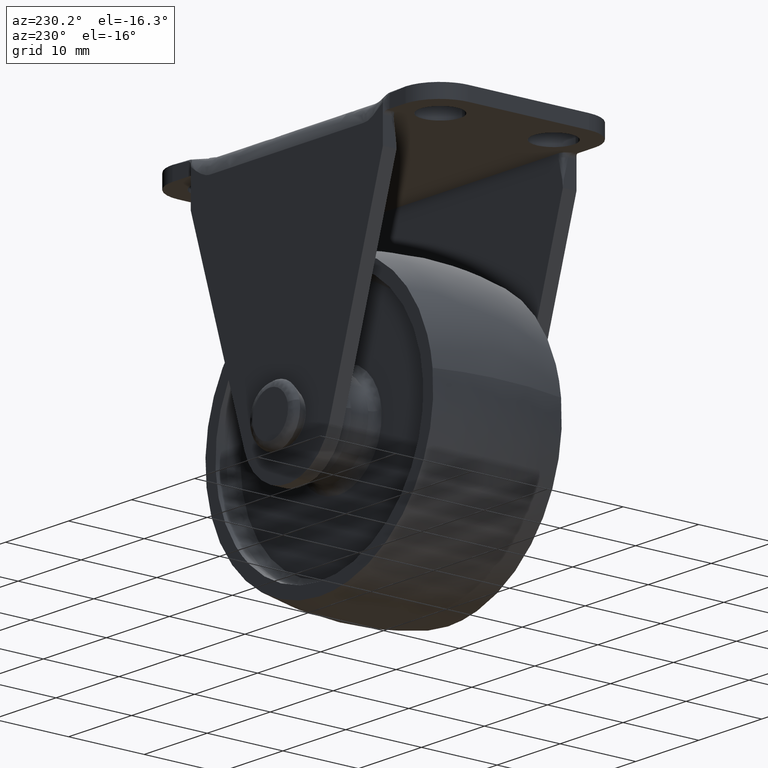
[diagram: clean part render]
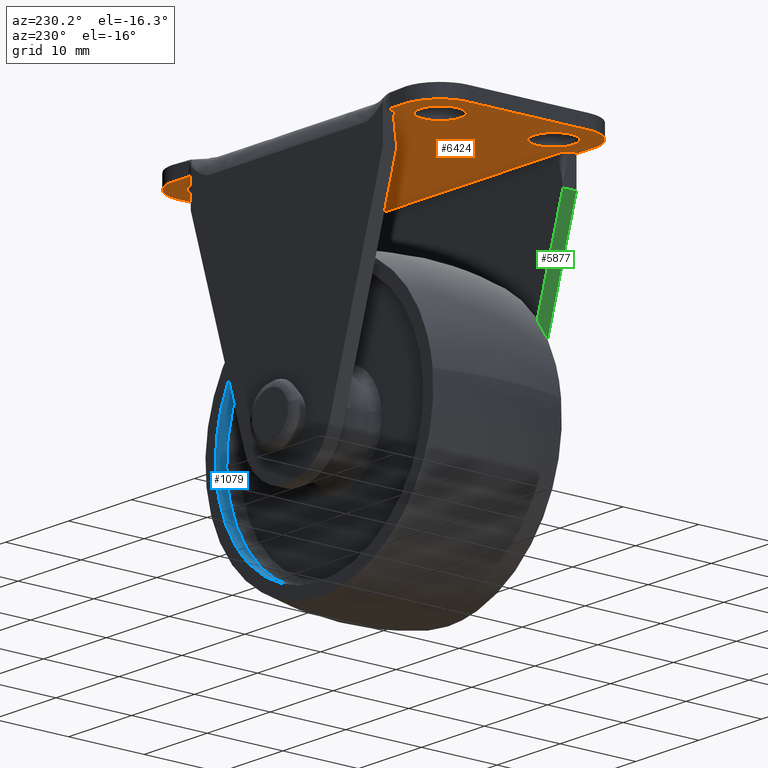
[diagram: same view with three faces highlighted in distinct colors, each labeled with its STEP entity id]
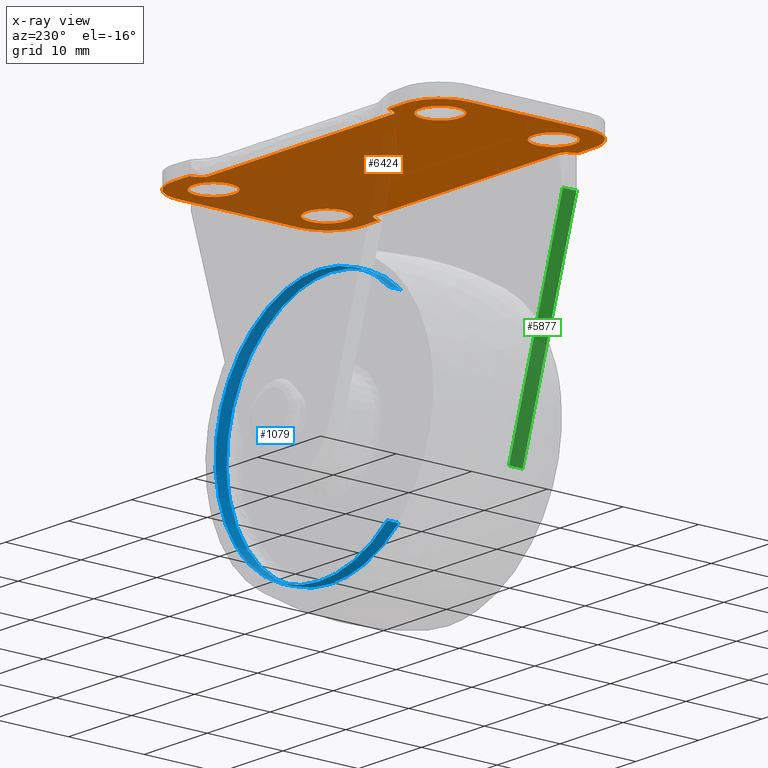
[diagram: x-ray of the same camera — body ghosted, the three highlighted faces saturated]
A machine part, auxiliary view with three faces highlighted in distinct colors.
The next image is the same camera in x-ray (body ghosted, the three faces saturated) — at least one of them is partly hidden behind the body in this view.
Their STEP definitions:

[orange] entity #6424 — the highlighted face is a freeform B-spline surface patch.
#2867=CARTESIAN_POINT('',(-17.838221370159228,-4.854942784186543,29.199999999999999));
#2868=VERTEX_POINT('',#2867);
#2874=CARTESIAN_POINT('',(-15.350000000000000,-7.500000000000000,29.199999999999999));
#2875=VERTEX_POINT('',#2874);
#2876=CARTESIAN_POINT('',(-15.350000000000000,-7.500000000000000,29.199999999999999));
#2877=CARTESIAN_POINT('',(-15.349999999999998,-5.007128922838514,29.200000000000006));
#2878=CARTESIAN_POINT('',(-17.838221370159228,-4.854942784186543,29.199999999999999));
#2886=(BOUNDED_CURVE()B_SPLINE_CURVE(2,(#2876,#2877,#2878),.UNSPECIFIED.,.F.,.U.)B_SPLINE_CURVE_WITH_KNOTS((3,3),(0.500000000000000,0.739332962232393),.UNSPECIFIED.)CURVE()GEOMETRIC_REPRESENTATION_ITEM()RATIONAL_B_SPLINE_CURVE((1.0,0.719603993294384,0.976072041652679))REPRESENTATION_ITEM(''));
#2887=EDGE_CURVE('',#2875,#2868,#2886,.T.);
#2889=CARTESIAN_POINT('',(-18.312790721873618,-10.131475244859770,29.199999999999999));
#2890=VERTEX_POINT('',#2889);
#2891=CARTESIAN_POINT('',(-18.312790721873622,-10.131475244859768,29.200000000000003));
#2892=CARTESIAN_POINT('',(-18.156943917111125,-10.149999999999999,29.200000000000003));
#2893=CARTESIAN_POINT('',(-18.0,-10.150000000000000,29.199999999999999));
#2894=CARTESIAN_POINT('',(-15.349999999999994,-10.149999999999999,29.199999999999999));
#2895=CARTESIAN_POINT('',(-15.350000000000000,-7.500000000000000,29.199999999999999));
#2903=(BOUNDED_CURVE()B_SPLINE_CURVE(2,(#2891,#2892,#2893,#2894,#2895),.UNSPECIFIED.,.F.,.U.)B_SPLINE_CURVE_WITH_KNOTS((3,2,3),(0.229562473511378,0.250000000000000,0.500000000000000),.UNSPECIFIED.)CURVE()GEOMETRIC_REPRESENTATION_ITEM()RATIONAL_B_SPLINE_CURVE((0.956026754179524,0.976055948328649,1.0,0.707106781186548,1.0))REPRESENTATION_ITEM(''));
#2904=EDGE_CURVE('',#2890,#2875,#2903,.T.);
#2948=CARTESIAN_POINT('',(-20.649999999999999,-7.500000000000000,29.199999999999999));
#2949=VERTEX_POINT('',#2948);
#2950=CARTESIAN_POINT('',(-20.649999999999999,-7.500000000000000,29.199999999999999));
#2951=CARTESIAN_POINT('',(-20.650000000000002,-9.853662493711292,29.200000000000006));
#2952=CARTESIAN_POINT('',(-18.312790721873618,-10.131475244859768,29.199999999999999));
#2960=(BOUNDED_CURVE()B_SPLINE_CURVE(2,(#2950,#2951,#2952),.UNSPECIFIED.,.F.,.U.)B_SPLINE_CURVE_WITH_KNOTS((3,3),(0.0,0.229562473511378),.UNSPECIFIED.)CURVE()GEOMETRIC_REPRESENTATION_ITEM()RATIONAL_B_SPLINE_CURVE((1.0,0.731050832857898,0.956026754179524))REPRESENTATION_ITEM(''));
#2961=EDGE_CURVE('',#2949,#2890,#2960,.T.);
#2963=CARTESIAN_POINT('',(-17.838221370159228,-4.854942784186543,29.199999999999996));
#2964=CARTESIAN_POINT('',(-17.919035177185137,-4.850000000000001,29.200000000000006));
#2965=CARTESIAN_POINT('',(-18.0,-4.850000000000001,29.199999999999999));
#2966=CARTESIAN_POINT('',(-20.650000000000002,-4.850000000000001,29.199999999999999));
#2967=CARTESIAN_POINT('',(-20.649999999999999,-7.500000000000000,29.199999999999999));
#2975=(BOUNDED_CURVE()B_SPLINE_CURVE(2,(#2963,#2964,#2965,#2966,#2967),.UNSPECIFIED.,.F.,.U.)B_SPLINE_CURVE_WITH_KNOTS((3,2,3),(0.739332962232392,0.750000000000000,1.0),.UNSPECIFIED.)CURVE()GEOMETRIC_REPRESENTATION_ITEM()RATIONAL_B_SPLINE_CURVE((0.976072041652679,0.987502787892163,1.0,0.707106781186548,1.0))REPRESENTATION_ITEM(''));
#2976=EDGE_CURVE('',#2868,#2949,#2975,.T.);
#3053=CARTESIAN_POINT('',(-17.838221370159228,10.145057215813461,29.199999999999999));
#3054=VERTEX_POINT('',#3053);
#3060=CARTESIAN_POINT('',(-15.350000000000000,7.500000000000000,29.199999999999999));
#3061=VERTEX_POINT('',#3060);
#3062=CARTESIAN_POINT('',(-15.350000000000000,7.500000000000000,29.199999999999999));
#3063=CARTESIAN_POINT('',(-15.349999999999998,9.992871077161485,29.200000000000006));
#3064=CARTESIAN_POINT('',(-17.838221370159228,10.145057215813457,29.199999999999999));
#3072=(BOUNDED_CURVE()B_SPLINE_CURVE(2,(#3062,#3063,#3064),.UNSPECIFIED.,.F.,.U.)B_SPLINE_CURVE_WITH_KNOTS((3,3),(0.500000000000000,0.739332962232393),.UNSPECIFIED.)CURVE()GEOMETRIC_REPRESENTATION_ITEM()RATIONAL_B_SPLINE_CURVE((1.0,0.719603993294384,0.976072041652679))REPRESENTATION_ITEM(''));
#3073=EDGE_CURVE('',#3061,#3054,#3072,.T.);
#3075=CARTESIAN_POINT('',(-18.312790721873629,4.868524755140232,29.199999999999999));
#3076=VERTEX_POINT('',#3075);
#3077=CARTESIAN_POINT('',(-18.312790721873625,4.868524755140232,29.200000000000006));
#3078=CARTESIAN_POINT('',(-18.156943917111125,4.850000000000000,29.200000000000003));
#3079=CARTESIAN_POINT('',(-18.0,4.850000000000001,29.199999999999999));
#3080=CARTESIAN_POINT('',(-15.349999999999994,4.850000000000001,29.199999999999999));
#3081=CARTESIAN_POINT('',(-15.350000000000000,7.500000000000000,29.199999999999999));
#3089=(BOUNDED_CURVE()B_SPLINE_CURVE(2,(#3077,#3078,#3079,#3080,#3081),.UNSPECIFIED.,.F.,.U.)B_SPLINE_CURVE_WITH_KNOTS((3,2,3),(0.229562473511378,0.250000000000000,0.500000000000000),.UNSPECIFIED.)CURVE()GEOMETRIC_REPRESENTATION_ITEM()RATIONAL_B_SPLINE_CURVE((0.956026754179524,0.976055948328649,1.0,0.707106781186548,1.0))REPRESENTATION_ITEM(''));
#3090=EDGE_CURVE('',#3076,#3061,#3089,.T.);
#3134=CARTESIAN_POINT('',(-20.649999999999999,7.500000000000000,29.199999999999999));
#3135=VERTEX_POINT('',#3134);
#3136=CARTESIAN_POINT('',(-20.649999999999999,7.500000000000000,29.199999999999999));
#3137=CARTESIAN_POINT('',(-20.650000000000002,5.146337506288709,29.200000000000006));
#3138=CARTESIAN_POINT('',(-18.312790721873629,4.868524755140232,29.199999999999999));
#3146=(BOUNDED_CURVE()B_SPLINE_CURVE(2,(#3136,#3137,#3138),.UNSPECIFIED.,.F.,.U.)B_SPLINE_CURVE_WITH_KNOTS((3,3),(0.0,0.229562473511378),.UNSPECIFIED.)CURVE()GEOMETRIC_REPRESENTATION_ITEM()RATIONAL_B_SPLINE_CURVE((1.0,0.731050832857898,0.956026754179524))REPRESENTATION_ITEM(''));
#3147=EDGE_CURVE('',#3135,#3076,#3146,.T.);
#3149=CARTESIAN_POINT('',(-17.838221370159228,10.145057215813457,29.199999999999996));
#3150=CARTESIAN_POINT('',(-17.919035177185137,10.149999999999997,29.200000000000006));
#3151=CARTESIAN_POINT('',(-18.0,10.150000000000000,29.199999999999999));
#3152=CARTESIAN_POINT('',(-20.650000000000002,10.149999999999999,29.199999999999999));
#3153=CARTESIAN_POINT('',(-20.649999999999999,7.500000000000000,29.199999999999999));
#3161=(BOUNDED_CURVE()B_SPLINE_CURVE(2,(#3149,#3150,#3151,#3152,#3153),.UNSPECIFIED.,.F.,.U.)B_SPLINE_CURVE_WITH_KNOTS((3,2,3),(0.739332962232392,0.750000000000000,1.0),.UNSPECIFIED.)CURVE()GEOMETRIC_REPRESENTATION_ITEM()RATIONAL_B_SPLINE_CURVE((0.976072041652679,0.987502787892163,1.0,0.707106781186548,1.0))REPRESENTATION_ITEM(''));
#3162=EDGE_CURVE('',#3054,#3135,#3161,.T.);
#3239=CARTESIAN_POINT('',(18.161778629840772,10.145057215813461,29.199999999999999));
#3240=VERTEX_POINT('',#3239);
#3246=CARTESIAN_POINT('',(20.649999999999999,7.500000000000000,29.199999999999999));
#3247=VERTEX_POINT('',#3246);
#3248=CARTESIAN_POINT('',(20.649999999999999,7.500000000000000,29.199999999999999));
#3249=CARTESIAN_POINT('',(20.650000000000002,9.992871077161485,29.200000000000006));
#3250=CARTESIAN_POINT('',(18.161778629840772,10.145057215813456,29.199999999999999));
#3258=(BOUNDED_CURVE()B_SPLINE_CURVE(2,(#3248,#3249,#3250),.UNSPECIFIED.,.F.,.U.)B_SPLINE_CURVE_WITH_KNOTS((3,3),(0.500000000000000,0.739332962232393),.UNSPECIFIED.)CURVE()GEOMETRIC_REPRESENTATION_ITEM()RATIONAL_B_SPLINE_CURVE((1.0,0.719603993294384,0.976072041652679))REPRESENTATION_ITEM(''));
#3259=EDGE_CURVE('',#3247,#3240,#3258,.T.);
#3261=CARTESIAN_POINT('',(17.687209278126382,4.868524755140232,29.199999999999999));
#3262=VERTEX_POINT('',#3261);
#3263=CARTESIAN_POINT('',(17.687209278126378,4.868524755140232,29.199999999999996));
#3264=CARTESIAN_POINT('',(17.843056082888875,4.850000000000001,29.199999999999999));
#3265=CARTESIAN_POINT('',(18.0,4.850000000000001,29.199999999999999));
#3266=CARTESIAN_POINT('',(20.650000000000002,4.850000000000001,29.199999999999999));
#3267=CARTESIAN_POINT('',(20.649999999999999,7.500000000000000,29.199999999999999));
#3275=(BOUNDED_CURVE()B_SPLINE_CURVE(2,(#3263,#3264,#3265,#3266,#3267),.UNSPECIFIED.,.F.,.U.)B_SPLINE_CURVE_WITH_KNOTS((3,2,3),(0.229562473511378,0.250000000000000,0.500000000000000),.UNSPECIFIED.)CURVE()GEOMETRIC_REPRESENTATION_ITEM()RATIONAL_B_SPLINE_CURVE((0.956026754179524,0.976055948328650,1.0,0.707106781186548,1.0))REPRESENTATION_ITEM(''));
#3276=EDGE_CURVE('',#3262,#3247,#3275,.T.);
#3320=CARTESIAN_POINT('',(15.350000000000000,7.500000000000000,29.199999999999999));
#3321=VERTEX_POINT('',#3320);
#3322=CARTESIAN_POINT('',(15.350000000000000,7.500000000000000,29.199999999999999));
#3323=CARTESIAN_POINT('',(15.349999999999996,5.146337506288706,29.199999999999999));
#3324=CARTESIAN_POINT('',(17.687209278126378,4.868524755140232,29.199999999999996));
#3332=(BOUNDED_CURVE()B_SPLINE_CURVE(2,(#3322,#3323,#3324),.UNSPECIFIED.,.F.,.U.)B_SPLINE_CURVE_WITH_KNOTS((3,3),(0.0,0.229562473511378),.UNSPECIFIED.)CURVE()GEOMETRIC_REPRESENTATION_ITEM()RATIONAL_B_SPLINE_CURVE((1.0,0.731050832857898,0.956026754179524))REPRESENTATION_ITEM(''));
#3333=EDGE_CURVE('',#3321,#3262,#3332,.T.);
#3335=CARTESIAN_POINT('',(18.161778629840772,10.145057215813456,29.199999999999999));
#3336=CARTESIAN_POINT('',(18.080964822814863,10.150000000000000,29.199999999999999));
#3337=CARTESIAN_POINT('',(18.0,10.150000000000000,29.199999999999999));
#3338=CARTESIAN_POINT('',(15.349999999999994,10.149999999999999,29.199999999999999));
#3339=CARTESIAN_POINT('',(15.350000000000000,7.500000000000000,29.199999999999999));
#3347=(BOUNDED_CURVE()B_SPLINE_CURVE(2,(#3335,#3336,#3337,#3338,#3339),.UNSPECIFIED.,.F.,.U.)B_SPLINE_CURVE_WITH_KNOTS((3,2,3),(0.739332962232392,0.750000000000000,1.0),.UNSPECIFIED.)CURVE()GEOMETRIC_REPRESENTATION_ITEM()RATIONAL_B_SPLINE_CURVE((0.976072041652678,0.987502787892163,1.0,0.707106781186548,1.0))REPRESENTATION_ITEM(''));
#3348=EDGE_CURVE('',#3240,#3321,#3347,.T.);
#3425=CARTESIAN_POINT('',(18.161778629840772,-4.854942784186543,29.199999999999999));
#3426=VERTEX_POINT('',#3425);
#3432=CARTESIAN_POINT('',(20.649999999999999,-7.500000000000000,29.199999999999999));
#3433=VERTEX_POINT('',#3432);
#3434=CARTESIAN_POINT('',(20.649999999999999,-7.500000000000000,29.199999999999999));
#3435=CARTESIAN_POINT('',(20.650000000000002,-5.007128922838514,29.200000000000006));
#3436=CARTESIAN_POINT('',(18.161778629840772,-4.854942784186543,29.199999999999999));
#3444=(BOUNDED_CURVE()B_SPLINE_CURVE(2,(#3434,#3435,#3436),.UNSPECIFIED.,.F.,.U.)B_SPLINE_CURVE_WITH_KNOTS((3,3),(0.500000000000000,0.739332962232393),.UNSPECIFIED.)CURVE()GEOMETRIC_REPRESENTATION_ITEM()RATIONAL_B_SPLINE_CURVE((1.0,0.719603993294384,0.976072041652679))REPRESENTATION_ITEM(''));
#3445=EDGE_CURVE('',#3433,#3426,#3444,.T.);
#3447=CARTESIAN_POINT('',(17.687209278126382,-10.131475244859770,29.199999999999999));
#3448=VERTEX_POINT('',#3447);
#3449=CARTESIAN_POINT('',(17.687209278126375,-10.131475244859768,29.199999999999999));
#3450=CARTESIAN_POINT('',(17.843056082888868,-10.150000000000000,29.199999999999999));
#3451=CARTESIAN_POINT('',(18.0,-10.150000000000000,29.199999999999999));
#3452=CARTESIAN_POINT('',(20.650000000000002,-10.149999999999999,29.199999999999999));
#3453=CARTESIAN_POINT('',(20.649999999999999,-7.500000000000000,29.199999999999999));
#3461=(BOUNDED_CURVE()B_SPLINE_CURVE(2,(#3449,#3450,#3451,#3452,#3453),.UNSPECIFIED.,.F.,.U.)B_SPLINE_CURVE_WITH_KNOTS((3,2,3),(0.229562473511378,0.250000000000000,0.500000000000000),.UNSPECIFIED.)CURVE()GEOMETRIC_REPRESENTATION_ITEM()RATIONAL_B_SPLINE_CURVE((0.956026754179524,0.976055948328649,1.0,0.707106781186548,1.0))REPRESENTATION_ITEM(''));
#3462=EDGE_CURVE('',#3448,#3433,#3461,.T.);
#3506=CARTESIAN_POINT('',(15.350000000000000,-7.500000000000000,29.199999999999999));
#3507=VERTEX_POINT('',#3506);
#3508=CARTESIAN_POINT('',(15.350000000000000,-7.500000000000000,29.199999999999999));
#3509=CARTESIAN_POINT('',(15.349999999999993,-9.853662493711294,29.200000000000010));
#3510=CARTESIAN_POINT('',(17.687209278126371,-10.131475244859768,29.200000000000003));
#3518=(BOUNDED_CURVE()B_SPLINE_CURVE(2,(#3508,#3509,#3510),.UNSPECIFIED.,.F.,.U.)B_SPLINE_CURVE_WITH_KNOTS((3,3),(0.0,0.229562473511378),.UNSPECIFIED.)CURVE()GEOMETRIC_REPRESENTATION_ITEM()RATIONAL_B_SPLINE_CURVE((1.0,0.731050832857898,0.956026754179524))REPRESENTATION_ITEM(''));
#3519=EDGE_CURVE('',#3507,#3448,#3518,.T.);
#3521=CARTESIAN_POINT('',(18.161778629840768,-4.854942784186544,29.199999999999999));
#3522=CARTESIAN_POINT('',(18.080964822814867,-4.850000000000001,29.200000000000003));
#3523=CARTESIAN_POINT('',(18.0,-4.850000000000001,29.199999999999999));
#3524=CARTESIAN_POINT('',(15.349999999999994,-4.850000000000001,29.199999999999999));
#3525=CARTESIAN_POINT('',(15.350000000000000,-7.500000000000000,29.199999999999999));
#3533=(BOUNDED_CURVE()B_SPLINE_CURVE(2,(#3521,#3522,#3523,#3524,#3525),.UNSPECIFIED.,.F.,.U.)B_SPLINE_CURVE_WITH_KNOTS((3,2,3),(0.739332962232392,0.750000000000000,1.0),.UNSPECIFIED.)CURVE()GEOMETRIC_REPRESENTATION_ITEM()RATIONAL_B_SPLINE_CURVE((0.976072041652678,0.987502787892163,1.0,0.707106781186548,1.0))REPRESENTATION_ITEM(''));
#3534=EDGE_CURVE('',#3426,#3507,#3533,.T.);
#3694=CARTESIAN_POINT('',(-14.606813741928899,-11.0,29.199999999999999));
#3695=VERTEX_POINT('',#3694);
#3696=CARTESIAN_POINT('',(-15.750000000000000,-12.199935907571801,29.199999999999999));
#3697=VERTEX_POINT('',#3696);
#3698=CARTESIAN_POINT('',(-14.606813741928899,-11.0,29.199999999999999));
#3699=CARTESIAN_POINT('',(-15.031690435100000,-11.001539630774539,29.199999999999999));
#3700=CARTESIAN_POINT('',(-15.345386402327311,-11.417848720005090,29.199999999999999));
#3701=CARTESIAN_POINT('',(-15.460756944373070,-11.570958132624019,29.199999999999999));
#3702=CARTESIAN_POINT('',(-15.569832608546109,-11.797625937855070,29.199999999999999));
#3703=CARTESIAN_POINT('',(-15.613450549437310,-11.888267448089881,29.199999999999999));
#3704=CARTESIAN_POINT('',(-15.660501868013871,-11.999528732569070,29.199999999999999));
#3705=CARTESIAN_POINT('',(-15.743117375194849,-12.194887921746520,29.199999999999999));
#3706=CARTESIAN_POINT('',(-15.750000000000000,-12.199935907571801,29.199999999999999));
#3707=B_SPLINE_CURVE_WITH_KNOTS('',2,(#3698,#3699,#3700,#3701,#3702,#3703,#3704,#3705,#3706),.UNSPECIFIED.,.F.,.U.,(3,2,2,2,3),(0.0,0.500000000000000,0.750000000000000,0.875000000000000,0.997108552630249),.UNSPECIFIED.);
#3708=EDGE_CURVE('',#3695,#3697,#3707,.T.);
#3873=CARTESIAN_POINT('',(-15.750213774191749,12.199657680195021,29.199999999999999));
#3874=VERTEX_POINT('',#3873);
#3875=CARTESIAN_POINT('',(-14.606813741919940,11.0,29.199999999999999));
#3876=VERTEX_POINT('',#3875);
#3877=CARTESIAN_POINT('',(-15.750213774191749,12.199657680195021,29.199999999999999));
#3878=CARTESIAN_POINT('',(-15.743333433700659,12.194622844377649,29.199999999999999));
#3879=CARTESIAN_POINT('',(-15.660699706041150,11.999311489361860,29.199999999999999));
#3880=CARTESIAN_POINT('',(-15.613699381370290,11.888222502362909,29.199999999999999));
#3881=CARTESIAN_POINT('',(-15.570129329786891,11.797701493120590,29.199999999999999));
#3882=CARTESIAN_POINT('',(-15.461199689273970,11.571389596822630,29.199999999999999));
#3883=CARTESIAN_POINT('',(-15.346032945223280,11.418431255205940,29.199999999999999));
#3884=CARTESIAN_POINT('',(-15.032106710508630,11.001491133752220,29.199999999999999));
#3885=CARTESIAN_POINT('',(-14.606813741919940,11.0,29.199999999999999));
#3886=B_SPLINE_CURVE_WITH_KNOTS('',2,(#3877,#3878,#3879,#3880,#3881,#3882,#3883,#3884,#3885),.UNSPECIFIED.,.F.,.U.,(3,2,2,2,3),(0.002884036529855,0.125000000000000,0.250000000000000,0.500000000000000,1.0),.UNSPECIFIED.);
#3887=EDGE_CURVE('',#3874,#3876,#3886,.T.);
#4051=CARTESIAN_POINT('',(15.750213774191099,-12.199657680195241,29.199999999999999));
#4052=VERTEX_POINT('',#4051);
#4053=CARTESIAN_POINT('',(14.606813741928740,-11.0,29.199999999999999));
#4054=VERTEX_POINT('',#4053);
#4055=CARTESIAN_POINT('',(15.750213774191099,-12.199657680195241,29.199999999999999));
#4056=CARTESIAN_POINT('',(15.743328754144869,-12.194619976668500,29.199999999999999));
#4057=CARTESIAN_POINT('',(15.660741330573160,-11.999409009696659,29.199999999999999));
#4058=CARTESIAN_POINT('',(15.613761607235110,-11.888363564466969,29.199999999999999));
#4059=CARTESIAN_POINT('',(15.570212817466340,-11.797874327388220,29.199999999999999));
#4060=CARTESIAN_POINT('',(15.461356553797829,-11.571683879779590,29.199999999999999));
#4061=CARTESIAN_POINT('',(15.346287303401960,-11.418768949710969,29.199999999999999));
#4062=CARTESIAN_POINT('',(15.032284155447661,-11.001491794905620,29.199999999999999));
#4063=CARTESIAN_POINT('',(14.606813741928740,-11.0,29.199999999999999));
#4064=B_SPLINE_CURVE_WITH_KNOTS('',2,(#4055,#4056,#4057,#4058,#4059,#4060,#4061,#4062,#4063),.UNSPECIFIED.,.F.,.U.,(3,2,2,2,3),(0.002887102411451,0.125000000000000,0.250000000000000,0.500000000000000,1.0),.UNSPECIFIED.);
#4065=EDGE_CURVE('',#4052,#4054,#4064,.T.);
#4229=CARTESIAN_POINT('',(14.606813741928740,11.0,29.199999999999999));
#4230=VERTEX_POINT('',#4229);
#4231=CARTESIAN_POINT('',(15.750000000000000,12.199935907571700,29.199999999999999));
#4232=VERTEX_POINT('',#4231);
#4233=CARTESIAN_POINT('',(14.606813741928740,11.0,29.199999999999999));
#4234=CARTESIAN_POINT('',(15.031601415359381,11.001539299118731,29.199999999999999));
#4235=CARTESIAN_POINT('',(15.345258806070071,11.417679461192581,29.199999999999999));
#4236=CARTESIAN_POINT('',(15.460684208713010,11.570818354730079,29.199999999999999));
#4237=CARTESIAN_POINT('',(15.569802571350129,11.797563664741981,29.199999999999999));
#4238=CARTESIAN_POINT('',(15.613430573735091,11.888221595148121,29.199999999999999));
#4239=CARTESIAN_POINT('',(15.660492325643659,11.999506366866269,29.199999999999999));
#4240=CARTESIAN_POINT('',(15.743118451500941,12.194888586632430,29.199999999999999));
#4241=CARTESIAN_POINT('',(15.750000000000000,12.199935907571700,29.199999999999999));
#4242=B_SPLINE_CURVE_WITH_KNOTS('',2,(#4233,#4234,#4235,#4236,#4237,#4238,#4239,#4240,#4241),.UNSPECIFIED.,.F.,.U.,(3,2,2,2,3),(0.0,0.500000000000000,0.750000000000000,0.875000000000000,0.997109260626446),.UNSPECIFIED.);
#4243=EDGE_CURVE('',#4230,#4232,#4242,.T.);
#5101=CARTESIAN_POINT('',(15.964142842854200,12.500000000000000,29.199999999999999));
#5102=VERTEX_POINT('',#5101);
#5108=CARTESIAN_POINT('',(15.750000000000000,12.523197643914440,29.199999999999999));
#5109=VERTEX_POINT('',#5108);
#5110=CARTESIAN_POINT('',(15.750000000000000,12.523197643914431,29.199999999999999));
#5111=CARTESIAN_POINT('',(15.855814945431899,12.499999999999998,29.199999999999999));
#5112=CARTESIAN_POINT('',(15.964142842854200,12.500000000000000,29.199999999999999));
#5120=(BOUNDED_CURVE()B_SPLINE_CURVE(2,(#5110,#5111,#5112),.UNSPECIFIED.,.F.,.U.)CURVE()GEOMETRIC_REPRESENTATION_ITEM()QUASI_UNIFORM_CURVE()RATIONAL_B_SPLINE_CURVE((1.0,0.994183674198478,1.0))REPRESENTATION_ITEM(''));
#5121=EDGE_CURVE('',#5109,#5102,#5120,.T.);
#5163=CARTESIAN_POINT('',(-15.964142842854351,12.500000000000000,29.199999999999999));
#5164=VERTEX_POINT('',#5163);
#5178=CARTESIAN_POINT('',(-15.750000000000000,12.523197643914440,29.199999999999999));
#5179=VERTEX_POINT('',#5178);
#5203=CARTESIAN_POINT('',(-15.964142842854351,12.500000000000000,29.199999999999999));
#5204=CARTESIAN_POINT('',(-15.855814945431971,12.500000000000005,29.199999999999999));
#5205=CARTESIAN_POINT('',(-15.750000000000000,12.523197643914459,29.199999999999999));
#5213=(BOUNDED_CURVE()B_SPLINE_CURVE(2,(#5203,#5204,#5205),.UNSPECIFIED.,.F.,.U.)CURVE()GEOMETRIC_REPRESENTATION_ITEM()QUASI_UNIFORM_CURVE()RATIONAL_B_SPLINE_CURVE((1.0,0.994183674198470,1.0))REPRESENTATION_ITEM(''));
#5214=EDGE_CURVE('',#5164,#5179,#5213,.T.);
#5241=CARTESIAN_POINT('',(-15.964142842854450,-12.500000000000000,29.199999999999999));
#5242=VERTEX_POINT('',#5241);
#5248=CARTESIAN_POINT('',(-15.750000000000000,-12.523197643914459,29.199999999999999));
#5249=VERTEX_POINT('',#5248);
#5250=CARTESIAN_POINT('',(-15.750000000000000,-12.523197643914481,29.199999999999999));
#5251=CARTESIAN_POINT('',(-15.855814945432019,-12.500000000000004,29.199999999999999));
#5252=CARTESIAN_POINT('',(-15.964142842854450,-12.500000000000000,29.199999999999999));
#5260=(BOUNDED_CURVE()B_SPLINE_CURVE(2,(#5250,#5251,#5252),.UNSPECIFIED.,.F.,.U.)CURVE()GEOMETRIC_REPRESENTATION_ITEM()QUASI_UNIFORM_CURVE()RATIONAL_B_SPLINE_CURVE((1.0,0.994183674198464,1.0))REPRESENTATION_ITEM(''));
#5261=EDGE_CURVE('',#5249,#5242,#5260,.T.);
#5303=CARTESIAN_POINT('',(15.964142842854301,-12.500000000000000,29.199999999999999));
#5304=VERTEX_POINT('',#5303);
#5318=CARTESIAN_POINT('',(15.750000000000000,-12.523197643914459,29.199999999999999));
#5319=VERTEX_POINT('',#5318);
#5343=CARTESIAN_POINT('',(15.964142842854301,-12.500000000000000,29.199999999999999));
#5344=CARTESIAN_POINT('',(15.855814945431947,-12.499999999999998,29.200000000000003));
#5345=CARTESIAN_POINT('',(15.750000000000000,-12.523197643914450,29.199999999999999));
#5353=(BOUNDED_CURVE()B_SPLINE_CURVE(2,(#5343,#5344,#5345),.UNSPECIFIED.,.F.,.U.)CURVE()GEOMETRIC_REPRESENTATION_ITEM()QUASI_UNIFORM_CURVE()RATIONAL_B_SPLINE_CURVE((1.0,0.994183674198472,1.0))REPRESENTATION_ITEM(''));
#5354=EDGE_CURVE('',#5304,#5319,#5353,.T.);
#5379=CARTESIAN_POINT('',(-15.750000000000000,12.523197643914440,29.199999999999999));
#5380=CARTESIAN_POINT('',(-15.750213774191749,12.199657680195021,29.199999999999999));
#5381=QUASI_UNIFORM_CURVE('',1,(#5379,#5380),.UNSPECIFIED.,.F.,.U.);
#5382=EDGE_CURVE('',#5179,#3874,#5381,.T.);
#5402=CARTESIAN_POINT('',(-15.750000000000000,-12.199935907571801,29.199999999999999));
#5403=CARTESIAN_POINT('',(-15.750000000000000,-12.523197643914459,29.199999999999999));
#5404=QUASI_UNIFORM_CURVE('',1,(#5402,#5403),.UNSPECIFIED.,.F.,.U.);
#5405=EDGE_CURVE('',#3697,#5249,#5404,.T.);
#5437=CARTESIAN_POINT('',(15.750000000000000,-12.523197643914459,29.199999999999999));
#5438=CARTESIAN_POINT('',(15.750213774191099,-12.199657680195241,29.199999999999999));
#5439=QUASI_UNIFORM_CURVE('',1,(#5437,#5438),.UNSPECIFIED.,.F.,.U.);
#5440=EDGE_CURVE('',#5319,#4052,#5439,.T.);
#5460=CARTESIAN_POINT('',(15.750000000000000,12.199935907571700,29.199999999999999));
#5461=CARTESIAN_POINT('',(15.750000000000000,12.523197643914440,29.199999999999999));
#5462=QUASI_UNIFORM_CURVE('',1,(#5460,#5461),.UNSPECIFIED.,.F.,.U.);
#5463=EDGE_CURVE('',#4232,#5109,#5462,.T.);
#6090=CARTESIAN_POINT('',(-18.500000000000000,12.500000000000000,29.199999999999999));
#6091=VERTEX_POINT('',#6090);
#6099=CARTESIAN_POINT('',(-15.964142842854351,12.500000000000000,29.199999999999999));
#6100=CARTESIAN_POINT('',(-18.500000000000000,12.500000000000000,29.199999999999999));
#6101=QUASI_UNIFORM_CURVE('',1,(#6099,#6100),.UNSPECIFIED.,.F.,.U.);
#6102=EDGE_CURVE('',#5164,#6091,#6101,.T.);
#6114=CARTESIAN_POINT('',(18.500000000000000,12.500000000000000,29.199999999999999));
#6115=VERTEX_POINT('',#6114);
#6121=CARTESIAN_POINT('',(18.500000000000000,12.500000000000000,29.199999999999999));
#6122=CARTESIAN_POINT('',(15.964142842854200,12.500000000000000,29.199999999999999));
#6123=QUASI_UNIFORM_CURVE('',1,(#6121,#6122),.UNSPECIFIED.,.F.,.U.);
#6124=EDGE_CURVE('',#6115,#5102,#6123,.T.);
#6144=CARTESIAN_POINT('',(23.0,8.0,29.199999999999999));
#6145=VERTEX_POINT('',#6144);
#6151=CARTESIAN_POINT('',(23.0,8.0,29.199999999999999));
#6152=CARTESIAN_POINT('',(22.999999999999996,12.499999999999998,29.199999999999989));
#6153=CARTESIAN_POINT('',(18.500000000000000,12.500000000000000,29.199999999999999));
#6161=(BOUNDED_CURVE()B_SPLINE_CURVE(2,(#6151,#6152,#6153),.UNSPECIFIED.,.F.,.U.)CURVE()GEOMETRIC_REPRESENTATION_ITEM()QUASI_UNIFORM_CURVE()RATIONAL_B_SPLINE_CURVE((1.0,0.707106781186547,1.0))REPRESENTATION_ITEM(''));
#6162=EDGE_CURVE('',#6145,#6115,#6161,.T.);
#6174=CARTESIAN_POINT('',(23.0,-8.0,29.199999999999999));
#6175=VERTEX_POINT('',#6174);
#6181=CARTESIAN_POINT('',(23.0,-8.0,29.199999999999999));
#6182=CARTESIAN_POINT('',(23.0,8.0,29.199999999999999));
#6183=QUASI_UNIFORM_CURVE('',1,(#6181,#6182),.UNSPECIFIED.,.F.,.U.);
#6184=EDGE_CURVE('',#6175,#6145,#6183,.T.);
#6205=CARTESIAN_POINT('',(18.500000000000000,-12.500000000000000,29.199999999999999));
#6206=VERTEX_POINT('',#6205);
#6212=CARTESIAN_POINT('',(18.500000000000000,-12.500000000000000,29.199999999999999));
#6213=CARTESIAN_POINT('',(22.999999999999996,-12.499999999999998,29.199999999999989));
#6214=CARTESIAN_POINT('',(23.0,-8.0,29.199999999999999));
#6222=(BOUNDED_CURVE()B_SPLINE_CURVE(2,(#6212,#6213,#6214),.UNSPECIFIED.,.F.,.U.)CURVE()GEOMETRIC_REPRESENTATION_ITEM()QUASI_UNIFORM_CURVE()RATIONAL_B_SPLINE_CURVE((1.0,0.707106781186547,1.0))REPRESENTATION_ITEM(''));
#6223=EDGE_CURVE('',#6206,#6175,#6222,.T.);
#6237=CARTESIAN_POINT('',(15.964142842854301,-12.500000000000000,29.199999999999999));
#6238=CARTESIAN_POINT('',(18.500000000000000,-12.500000000000000,29.199999999999999));
#6239=QUASI_UNIFORM_CURVE('',1,(#6237,#6238),.UNSPECIFIED.,.F.,.U.);
#6240=EDGE_CURVE('',#5304,#6206,#6239,.T.);
#6252=CARTESIAN_POINT('',(-18.500000000000000,-12.500000000000000,29.199999999999999));
#6253=VERTEX_POINT('',#6252);
#6259=CARTESIAN_POINT('',(-18.500000000000000,-12.500000000000000,29.199999999999999));
#6260=CARTESIAN_POINT('',(-15.964142842854450,-12.500000000000000,29.199999999999999));
#6261=QUASI_UNIFORM_CURVE('',1,(#6259,#6260),.UNSPECIFIED.,.F.,.U.);
#6262=EDGE_CURVE('',#6253,#5242,#6261,.T.);
#6282=CARTESIAN_POINT('',(-23.0,-8.0,29.199999999999999));
#6283=VERTEX_POINT('',#6282);
#6289=CARTESIAN_POINT('',(-23.0,-8.0,29.199999999999999));
#6290=CARTESIAN_POINT('',(-22.999999999999996,-12.499999999999998,29.199999999999989));
#6291=CARTESIAN_POINT('',(-18.500000000000000,-12.500000000000000,29.199999999999999));
#6299=(BOUNDED_CURVE()B_SPLINE_CURVE(2,(#6289,#6290,#6291),.UNSPECIFIED.,.F.,.U.)CURVE()GEOMETRIC_REPRESENTATION_ITEM()QUASI_UNIFORM_CURVE()RATIONAL_B_SPLINE_CURVE((1.0,0.707106781186547,1.0))REPRESENTATION_ITEM(''));
#6300=EDGE_CURVE('',#6283,#6253,#6299,.T.);
#6312=CARTESIAN_POINT('',(-23.0,8.0,29.199999999999999));
#6313=VERTEX_POINT('',#6312);
#6319=CARTESIAN_POINT('',(-23.0,8.0,29.199999999999999));
#6320=CARTESIAN_POINT('',(-23.0,-8.0,29.199999999999999));
#6321=QUASI_UNIFORM_CURVE('',1,(#6319,#6320),.UNSPECIFIED.,.F.,.U.);
#6322=EDGE_CURVE('',#6313,#6283,#6321,.T.);
#6344=CARTESIAN_POINT('',(-18.500000000000000,12.500000000000000,29.199999999999999));
#6345=CARTESIAN_POINT('',(-22.999999999999996,12.499999999999998,29.199999999999989));
#6346=CARTESIAN_POINT('',(-23.0,8.0,29.199999999999999));
#6354=(BOUNDED_CURVE()B_SPLINE_CURVE(2,(#6344,#6345,#6346),.UNSPECIFIED.,.F.,.U.)CURVE()GEOMETRIC_REPRESENTATION_ITEM()QUASI_UNIFORM_CURVE()RATIONAL_B_SPLINE_CURVE((1.0,0.707106781186547,1.0))REPRESENTATION_ITEM(''));
#6355=EDGE_CURVE('',#6091,#6313,#6354,.T.);
#6361=CARTESIAN_POINT('',(-25.297699910843079,13.774264480278131,29.199999999999999));
#6362=CARTESIAN_POINT('',(25.297701144659229,13.774264480278131,29.199999999999999));
#6363=CARTESIAN_POINT('',(-25.297699910843079,-13.774263808481480,29.199999999999999));
#6364=CARTESIAN_POINT('',(25.297701144659229,-13.774263808481480,29.199999999999999));
#6365=B_SPLINE_SURFACE_WITH_KNOTS('',1,1,((#6361,#6363),(#6362,#6364)),.UNSPECIFIED.,.F.,.F.,.U.,(2,2),(2,2),(0.0,50.595401055502307),(0.0,27.548528288759599),.UNSPECIFIED.);
#6366=CARTESIAN_POINT('',(14.606813741928740,11.0,29.199999999999999));
#6367=CARTESIAN_POINT('',(-14.606813741919940,11.0,29.199999999999999));
#6368=QUASI_UNIFORM_CURVE('',1,(#6366,#6367),.UNSPECIFIED.,.F.,.U.);
#6369=EDGE_CURVE('',#4230,#3876,#6368,.T.);
#6370=ORIENTED_EDGE('',*,*,#6369,.F.);
#6371=ORIENTED_EDGE('',*,*,#4243,.T.);
#6372=ORIENTED_EDGE('',*,*,#5463,.T.);
#6373=ORIENTED_EDGE('',*,*,#5121,.T.);
#6374=ORIENTED_EDGE('',*,*,#6124,.F.);
#6375=ORIENTED_EDGE('',*,*,#6162,.F.);
#6376=ORIENTED_EDGE('',*,*,#6184,.F.);
#6377=ORIENTED_EDGE('',*,*,#6223,.F.);
#6378=ORIENTED_EDGE('',*,*,#6240,.F.);
#6379=ORIENTED_EDGE('',*,*,#5354,.T.);
#6380=ORIENTED_EDGE('',*,*,#5440,.T.);
#6381=ORIENTED_EDGE('',*,*,#4065,.T.);
#6382=CARTESIAN_POINT('',(14.606813741928740,-11.0,29.199999999999999));
#6383=CARTESIAN_POINT('',(-14.606813741928899,-11.0,29.199999999999999));
#6384=QUASI_UNIFORM_CURVE('',1,(#6382,#6383),.UNSPECIFIED.,.F.,.U.);
#6385=EDGE_CURVE('',#4054,#3695,#6384,.T.);
#6386=ORIENTED_EDGE('',*,*,#6385,.T.);
#6387=ORIENTED_EDGE('',*,*,#3708,.T.);
#6388=ORIENTED_EDGE('',*,*,#5405,.T.);
#6389=ORIENTED_EDGE('',*,*,#5261,.T.);
#6390=ORIENTED_EDGE('',*,*,#6262,.F.);
#6391=ORIENTED_EDGE('',*,*,#6300,.F.);
#6392=ORIENTED_EDGE('',*,*,#6322,.F.);
#6393=ORIENTED_EDGE('',*,*,#6355,.F.);
#6394=ORIENTED_EDGE('',*,*,#6102,.F.);
#6395=ORIENTED_EDGE('',*,*,#5214,.T.);
#6396=ORIENTED_EDGE('',*,*,#5382,.T.);
#6397=ORIENTED_EDGE('',*,*,#3887,.T.);
#6398=EDGE_LOOP('',(#6370,#6371,#6372,#6373,#6374,#6375,#6376,#6377,#6378,#6379,#6380,#6381,#6386,#6387,#6388,#6389,#6390,#6391,#6392,#6393,#6394,#6395,#6396,#6397));
#6399=FACE_OUTER_BOUND('',#6398,.T.);
#6400=ORIENTED_EDGE('',*,*,#3445,.T.);
#6401=ORIENTED_EDGE('',*,*,#3534,.T.);
#6402=ORIENTED_EDGE('',*,*,#3519,.T.);
#6403=ORIENTED_EDGE('',*,*,#3462,.T.);
#6404=EDGE_LOOP('',(#6400,#6401,#6402,#6403));
#6405=FACE_BOUND('',#6404,.T.);
#6406=ORIENTED_EDGE('',*,*,#3259,.T.);
#6407=ORIENTED_EDGE('',*,*,#3348,.T.);
#6408=ORIENTED_EDGE('',*,*,#3333,.T.);
#6409=ORIENTED_EDGE('',*,*,#3276,.T.);
#6410=EDGE_LOOP('',(#6406,#6407,#6408,#6409));
#6411=FACE_BOUND('',#6410,.T.);
#6412=ORIENTED_EDGE('',*,*,#3073,.T.);
#6413=ORIENTED_EDGE('',*,*,#3162,.T.);
#6414=ORIENTED_EDGE('',*,*,#3147,.T.);
#6415=ORIENTED_EDGE('',*,*,#3090,.T.);
#6416=EDGE_LOOP('',(#6412,#6413,#6414,#6415));
#6417=FACE_BOUND('',#6416,.T.);
#6418=ORIENTED_EDGE('',*,*,#2887,.T.);
#6419=ORIENTED_EDGE('',*,*,#2976,.T.);
#6420=ORIENTED_EDGE('',*,*,#2961,.T.);
#6421=ORIENTED_EDGE('',*,*,#2904,.T.);
#6422=EDGE_LOOP('',(#6418,#6419,#6420,#6421));
#6423=FACE_BOUND('',#6422,.T.);
#6424=ADVANCED_FACE('',(#6399,#6405,#6411,#6417,#6423),#6365,.T.);

[blue] entity #1079 — the highlighted face is a freeform B-spline surface patch.
#932=CARTESIAN_POINT('',(-10.796604340544631,8.537500000016754,-12.477312800187898));
#933=CARTESIAN_POINT('',(0.314339156644487,8.537500000016754,-22.091599362555044));
#934=CARTESIAN_POINT('',(11.147238425658390,8.537500000016754,-12.165076057367040));
#935=CARTESIAN_POINT('',(23.312314483025432,8.537500000016754,-1.017837631708648));
#936=CARTESIAN_POINT('',(12.165076057367040,8.537500000016754,11.147238425658401));
#937=CARTESIAN_POINT('',(1.017837631708650,8.537500000016754,23.312314483025432));
#938=CARTESIAN_POINT('',(-11.147238425658390,8.537500000016754,12.165076057367051));
#939=CARTESIAN_POINT('',(-10.796604340544631,6.961562499312757,-12.477312800187898));
#940=CARTESIAN_POINT('',(0.314339156644487,6.961562499312757,-22.091599362555044));
#941=CARTESIAN_POINT('',(11.147238425658390,6.961562499312757,-12.165076057367040));
#942=CARTESIAN_POINT('',(23.312314483025432,6.961562499312757,-1.017837631708648));
#943=CARTESIAN_POINT('',(12.165076057367040,6.961562499312757,11.147238425658401));
#944=CARTESIAN_POINT('',(1.017837631708650,6.961562499312757,23.312314483025432));
#945=CARTESIAN_POINT('',(-11.147238425658390,6.961562499312757,12.165076057367051));
#953=(BOUNDED_SURFACE()B_SPLINE_SURFACE(2,1,((#932,#939),(#933,#940),(#934,#941),(#935,#942),(#936,#943),(#937,#944),(#938,#945)),.UNSPECIFIED.,.F.,.F.,.U.)B_SPLINE_SURFACE_WITH_KNOTS((3,2,2,3),(2,2),(0.0,25.151047507294329,52.489142623918603,79.827237740542870),(0.0,1.0),.UNSPECIFIED.)GEOMETRIC_REPRESENTATION_ITEM()RATIONAL_B_SPLINE_SURFACE(((0.956886118190660,0.956886118190660),(0.730538238691624,0.730538238691624),(1.0,1.0),(0.707106781186548,0.707106781186548),(1.0,1.0),(0.707106781186548,0.707106781186548),(1.0,1.0)))REPRESENTATION_ITEM('')SURFACE());
#954=CARTESIAN_POINT('',(-10.796603384605570,8.500000000000068,-12.477313627360740));
#955=VERTEX_POINT('',#954);
#956=CARTESIAN_POINT('',(0.0,8.500000000000000,-16.500000000000000));
#957=VERTEX_POINT('',#956);
#958=CARTESIAN_POINT('',(-10.796603384605568,8.500000000000068,-12.477313627360735));
#959=CARTESIAN_POINT('',(-6.147704308855824,8.500000000000002,-16.500000000000000));
#960=CARTESIAN_POINT('',(0.0,8.500000000000000,-16.500000000000000));
#968=(BOUNDED_CURVE()B_SPLINE_CURVE(2,(#958,#959,#960),.UNSPECIFIED.,.F.,.U.)B_SPLINE_CURVE_WITH_KNOTS((3,3),(0.885882131523835,1.0),.UNSPECIFIED.)CURVE()GEOMETRIC_REPRESENTATION_ITEM()RATIONAL_B_SPLINE_CURVE((0.854663299243930,0.866302600711543,1.0))REPRESENTATION_ITEM(''));
#969=EDGE_CURVE('',#955,#957,#968,.T.);
#970=ORIENTED_EDGE('',*,*,#969,.F.);
#971=CARTESIAN_POINT('',(-10.796603396123929,7.0,-12.477313617393920));
#972=VERTEX_POINT('',#971);
#973=CARTESIAN_POINT('',(-10.796603384605570,8.500000000000068,-12.477313627360740));
#974=CARTESIAN_POINT('',(-10.796603396123929,7.0,-12.477313617393920));
#975=QUASI_UNIFORM_CURVE('',1,(#973,#974),.UNSPECIFIED.,.F.,.U.);
#976=EDGE_CURVE('',#955,#972,#975,.T.);
#977=ORIENTED_EDGE('',*,*,#976,.T.);
#978=CARTESIAN_POINT('',(0.0,7.0,-16.500000000000000));
#979=VERTEX_POINT('',#978);
#980=CARTESIAN_POINT('',(-10.796603396123928,7.000000000000001,-12.477313617393916));
#981=CARTESIAN_POINT('',(-6.147704317529025,7.0,-16.500000000000004));
#982=CARTESIAN_POINT('',(0.0,7.0,-16.500000000000000));
#990=(BOUNDED_CURVE()B_SPLINE_CURVE(2,(#980,#981,#982),.UNSPECIFIED.,.F.,.U.)B_SPLINE_CURVE_WITH_KNOTS((3,3),(0.885882131384362,1.0),.UNSPECIFIED.)CURVE()GEOMETRIC_REPRESENTATION_ITEM()RATIONAL_B_SPLINE_CURVE((0.854663299215479,0.866302600548140,1.0))REPRESENTATION_ITEM(''));
#991=EDGE_CURVE('',#972,#979,#990,.T.);
#992=ORIENTED_EDGE('',*,*,#991,.T.);
#993=CARTESIAN_POINT('',(16.494789123174058,6.999999999329928,-0.414646574830636));
#994=VERTEX_POINT('',#993);
#995=CARTESIAN_POINT('',(0.0,7.0,-16.500000000000000));
#996=CARTESIAN_POINT('',(16.090434956950325,7.0,-16.499999999999996));
#997=CARTESIAN_POINT('',(16.494789123174058,6.999999999329928,-0.414646574830636));
#1005=(BOUNDED_CURVE()B_SPLINE_CURVE(2,(#995,#996,#997),.UNSPECIFIED.,.F.,.U.)B_SPLINE_CURVE_WITH_KNOTS((3,3),(0.0,0.245579891769477),.UNSPECIFIED.)CURVE()GEOMETRIC_REPRESENTATION_ITEM()RATIONAL_B_SPLINE_CURVE((1.0,0.712285260095114,0.989826157680830))REPRESENTATION_ITEM(''));
#1006=EDGE_CURVE('',#979,#994,#1005,.T.);
#1007=ORIENTED_EDGE('',*,*,#1006,.T.);
#1008=CARTESIAN_POINT('',(0.0,7.0,16.500000000000000));
#1009=VERTEX_POINT('',#1008);
#1010=CARTESIAN_POINT('',(16.494789123174058,6.999999999329928,-0.414646574830636));
#1011=CARTESIAN_POINT('',(16.499999999999996,7.0,-0.207356030051340));
#1012=CARTESIAN_POINT('',(16.500000000000000,7.0,9.884614E-016));
#1013=CARTESIAN_POINT('',(16.499999999999993,6.999999999999999,16.499999999999993));
#1014=CARTESIAN_POINT('',(0.0,7.0,16.500000000000000));
#1022=(BOUNDED_CURVE()B_SPLINE_CURVE(2,(#1010,#1011,#1012,#1013,#1014),.UNSPECIFIED.,.F.,.U.)B_SPLINE_CURVE_WITH_KNOTS((3,2,3),(0.245579891769477,0.250000000000000,0.500000000000000),.UNSPECIFIED.)CURVE()GEOMETRIC_REPRESENTATION_ITEM()RATIONAL_B_SPLINE_CURVE((0.989826157680830,0.994821521091433,1.0,0.707106781186548,1.0))REPRESENTATION_ITEM(''));
#1023=EDGE_CURVE('',#994,#1009,#1022,.T.);
#1024=ORIENTED_EDGE('',*,*,#1023,.T.);
#1025=CARTESIAN_POINT('',(-11.147238102676340,6.999999999819400,12.165076353323490));
#1026=VERTEX_POINT('',#1025);
#1027=CARTESIAN_POINT('',(0.0,7.0,16.500000000000000));
#1028=CARTESIAN_POINT('',(-6.416498571251790,7.0,16.500000000000004));
#1029=CARTESIAN_POINT('',(-11.147238102676342,6.999999999819400,12.165076353323490));
#1037=(BOUNDED_CURVE()B_SPLINE_CURVE(2,(#1027,#1028,#1029),.UNSPECIFIED.,.F.,.U.)B_SPLINE_CURVE_WITH_KNOTS((3,3),(0.500000000000000,0.618415201068103),.UNSPECIFIED.)CURVE()GEOMETRIC_REPRESENTATION_ITEM()RATIONAL_B_SPLINE_CURVE((1.0,0.861267962410885,0.853959781827391))REPRESENTATION_ITEM(''));
#1038=EDGE_CURVE('',#1009,#1026,#1037,.T.);
#1039=ORIENTED_EDGE('',*,*,#1038,.T.);
#1040=CARTESIAN_POINT('',(-11.147238082539079,8.500000000000000,12.165076371777950));
#1041=VERTEX_POINT('',#1040);
#1042=CARTESIAN_POINT('',(-11.147238082539079,8.500000000000000,12.165076371777950));
#1043=CARTESIAN_POINT('',(-11.147238102676340,6.999999999819400,12.165076353323490));
#1044=QUASI_UNIFORM_CURVE('',1,(#1042,#1043),.UNSPECIFIED.,.F.,.U.);
#1045=EDGE_CURVE('',#1041,#1026,#1044,.T.);
#1046=ORIENTED_EDGE('',*,*,#1045,.F.);
#1047=CARTESIAN_POINT('',(0.0,8.500000000000000,16.500000000000000));
#1048=VERTEX_POINT('',#1047);
#1049=CARTESIAN_POINT('',(0.0,8.500000000000000,16.500000000000000));
#1050=CARTESIAN_POINT('',(-6.416498539808392,8.500000000000000,16.499999999999996));
#1051=CARTESIAN_POINT('',(-11.147238082539079,8.500000000000000,12.165076371777950));
#1059=(BOUNDED_CURVE()B_SPLINE_CURVE(2,(#1049,#1050,#1051),.UNSPECIFIED.,.F.,.U.)B_SPLINE_CURVE_WITH_KNOTS((3,3),(0.500000000000000,0.618415200568325),.UNSPECIFIED.)CURVE()GEOMETRIC_REPRESENTATION_ITEM()RATIONAL_B_SPLINE_CURVE((1.0,0.861267962996411,0.853959781889080))REPRESENTATION_ITEM(''));
#1060=EDGE_CURVE('',#1048,#1041,#1059,.T.);
#1061=ORIENTED_EDGE('',*,*,#1060,.F.);
#1062=CARTESIAN_POINT('',(0.0,8.500000000000000,-16.500000000000000));
#1063=CARTESIAN_POINT('',(16.499999999999993,8.500000000000002,-16.499999999999993));
#1064=CARTESIAN_POINT('',(16.500000000000000,8.500000000000000,9.884614E-016));
#1065=CARTESIAN_POINT('',(16.499999999999993,8.500000000000002,16.499999999999993));
#1066=CARTESIAN_POINT('',(0.0,8.500000000000000,16.500000000000000));
#1074=(BOUNDED_CURVE()B_SPLINE_CURVE(2,(#1062,#1063,#1064,#1065,#1066),.UNSPECIFIED.,.F.,.U.)B_SPLINE_CURVE_WITH_KNOTS((3,2,3),(0.0,0.250000000000000,0.500000000000000),.UNSPECIFIED.)CURVE()GEOMETRIC_REPRESENTATION_ITEM()RATIONAL_B_SPLINE_CURVE((1.0,0.707106781186548,1.0,0.707106781186548,1.0))REPRESENTATION_ITEM(''));
#1075=EDGE_CURVE('',#957,#1048,#1074,.T.);
#1076=ORIENTED_EDGE('',*,*,#1075,.F.);
#1077=EDGE_LOOP('',(#970,#977,#992,#1007,#1024,#1039,#1046,#1061,#1076));
#1078=FACE_OUTER_BOUND('',#1077,.T.);
#1079=ADVANCED_FACE('',(#1078),#953,.F.);

[green] entity #5877 — the highlighted face is a freeform B-spline surface patch.
#3619=CARTESIAN_POINT('',(-15.249999000000100,-11.0,25.399999000000001));
#3620=VERTEX_POINT('',#3619);
#5844=CARTESIAN_POINT('',(-6.253476739346895,-12.889910199276750,-3.460561376378510));
#5845=CARTESIAN_POINT('',(-15.677997010969859,-12.889910199276750,26.773003154125849));
#5846=CARTESIAN_POINT('',(-6.253476739346895,-10.910089945562680,-3.460561376378510));
#5847=CARTESIAN_POINT('',(-15.677997010969859,-10.910089945562680,26.773003154125849));
#5848=B_SPLINE_SURFACE_WITH_KNOTS('',1,1,((#5844,#5846),(#5845,#5847)),.UNSPECIFIED.,.F.,.F.,.U.,(2,2),(2,2),(0.0,31.668438650656650),(0.0,1.979820253714063),.UNSPECIFIED.);
#5849=CARTESIAN_POINT('',(-6.681474597099490,-11.0,-2.087557713768475));
#5850=VERTEX_POINT('',#5849);
#5851=CARTESIAN_POINT('',(-6.681474597099490,-12.800000000000139,-2.087557713768475));
#5852=VERTEX_POINT('',#5851);
#5853=CARTESIAN_POINT('',(-6.681474597099490,-11.0,-2.087557713768475));
#5854=CARTESIAN_POINT('',(-6.681474597099490,-12.800000000000139,-2.087557713768475));
#5855=QUASI_UNIFORM_CURVE('',1,(#5853,#5854),.UNSPECIFIED.,.F.,.U.);
#5856=EDGE_CURVE('',#5850,#5852,#5855,.T.);
#5857=ORIENTED_EDGE('',*,*,#5856,.T.);
#5858=CARTESIAN_POINT('',(-15.249999000000100,-12.800000000000139,25.399999000000001));
#5859=VERTEX_POINT('',#5858);
#5860=CARTESIAN_POINT('',(-15.249999000000100,-12.800000000000139,25.399999000000001));
#5861=CARTESIAN_POINT('',(-6.681474597099490,-12.800000000000139,-2.087557713768475));
#5862=QUASI_UNIFORM_CURVE('',1,(#5860,#5861),.UNSPECIFIED.,.F.,.U.);
#5863=EDGE_CURVE('',#5859,#5852,#5862,.T.);
#5864=ORIENTED_EDGE('',*,*,#5863,.F.);
#5865=CARTESIAN_POINT('',(-15.249999000000100,-11.0,25.399999000000001));
#5866=CARTESIAN_POINT('',(-15.249999000000100,-12.800000000000139,25.399999000000001));
#5867=QUASI_UNIFORM_CURVE('',1,(#5865,#5866),.UNSPECIFIED.,.F.,.U.);
#5868=EDGE_CURVE('',#3620,#5859,#5867,.T.);
#5869=ORIENTED_EDGE('',*,*,#5868,.F.);
#5870=CARTESIAN_POINT('',(-6.681474597099490,-11.0,-2.087557713768475));
#5871=CARTESIAN_POINT('',(-15.249999000000100,-11.0,25.399999000000001));
#5872=QUASI_UNIFORM_CURVE('',1,(#5870,#5871),.UNSPECIFIED.,.F.,.U.);
#5873=EDGE_CURVE('',#5850,#3620,#5872,.T.);
#5874=ORIENTED_EDGE('',*,*,#5873,.F.);
#5875=EDGE_LOOP('',(#5857,#5864,#5869,#5874));
#5876=FACE_OUTER_BOUND('',#5875,.T.);
#5877=ADVANCED_FACE('',(#5876),#5848,.T.);